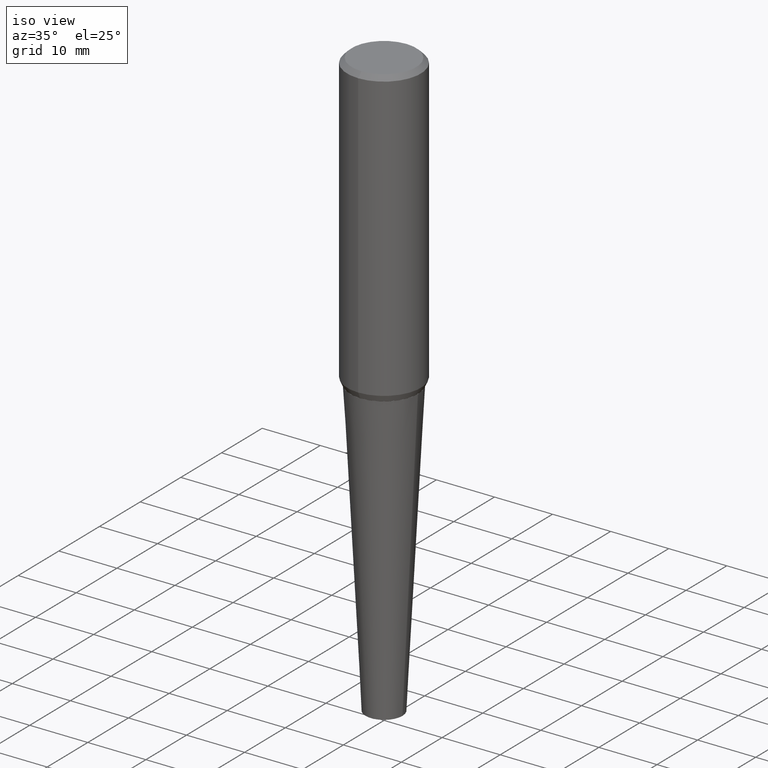
[diagram: clean part render]
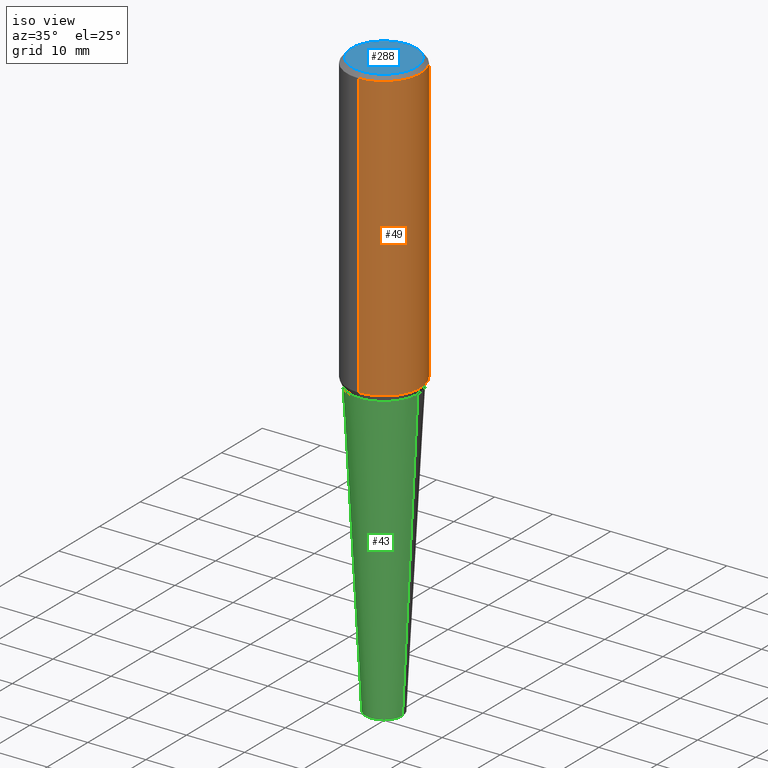
[diagram: same view with three faces highlighted in distinct colors, each labeled with its STEP entity id]
A machine part, iso view with three faces highlighted in distinct colors.
Their STEP definitions:

[orange] entity #49 — the highlighted cylindrical surface (partial cylindrical patch) has radius 6.35 mm, axis along (-0, 0, 1).
#13 = LINE ( 'NONE', #200, #180 ) ;
#20 = ORIENTED_EDGE ( 'NONE', *, *, #291, .F. ) ;
#21 = CARTESIAN_POINT ( 'NONE',  ( 1.776356839400248295E-15, 0.2499999999999997224, -7.828487236126975993E-16 ) ) ;
#26 = DIRECTION ( 'NONE',  ( -2.643499361395871506E-29, 3.207890312582139837E-15, 1.000000000000000000 ) ) ;
#49 = ADVANCED_FACE ( 'NONE', ( #247 ), #236, .T. ) ;
#50 = LINE ( 'NONE', #21, #170 ) ;
#59 = CARTESIAN_POINT ( 'NONE',  ( -1.715124499442888610E-15, -0.2500000000000010547, -0.03124999999999932693 ) ) ;
#77 = DIRECTION ( 'NONE',  ( -2.643499361395871506E-29, 3.207890312582139837E-15, 1.000000000000000000 ) ) ;
#103 = AXIS2_PLACEMENT_3D ( 'NONE', #350, #123, #192 ) ;
#123 = DIRECTION ( 'NONE',  ( -2.643499361395871506E-29, 3.207890312582139837E-15, 1.000000000000000000 ) ) ;
#124 = ORIENTED_EDGE ( 'NONE', *, *, #224, .T. ) ;
#133 = AXIS2_PLACEMENT_3D ( 'NONE', #295, #77, #296 ) ;
#149 = CARTESIAN_POINT ( 'NONE',  ( -1.745740669421517768E-15, -0.2500000000000067168, -1.956714325658313269 ) ) ;
#151 = EDGE_CURVE ( 'NONE', #403, #384, #261, .T. ) ;
#156 = CARTESIAN_POINT ( 'NONE',  ( 1.745740669421567269E-15, 0.2499999999999998890, -0.03125000000000092981 ) ) ;
#170 = VECTOR ( 'NONE', #26, 39.37007874015748143 ) ;
#178 = CARTESIAN_POINT ( 'NONE',  ( -3.397982428467408395E-30, -4.866104238714468673E-16, 1.912385453283800096E-17 ) ) ;
#180 = VECTOR ( 'NONE', #263, 39.37007874015748143 ) ;
#192 = DIRECTION ( 'NONE',  ( -6.982962677686265922E-15, -1.000000000000000000, 3.278217592397117045E-15 ) ) ;
#196 = AXIS2_PLACEMENT_3D ( 'NONE', #178, #366, #406 ) ;
#200 = CARTESIAN_POINT ( 'NONE',  ( -1.745740669421571411E-15, -0.2500000000000006661, 8.210964326783736998E-16 ) ) ;
#208 = ORIENTED_EDGE ( 'NONE', *, *, #151, .F. ) ;
#217 = CIRCLE ( 'NONE', #103, 0.2499999999999999167 ) ;
#224 = EDGE_CURVE ( 'NONE', #400, #334, #217, .T. ) ;
#236 = CYLINDRICAL_SURFACE ( 'NONE', #196, 0.2500000000000002220 ) ;
#247 = FACE_OUTER_BOUND ( 'NONE', #314, .T. ) ;
#261 = CIRCLE ( 'NONE', #133, 0.2500000000000004996 ) ;
#263 = DIRECTION ( 'NONE',  ( -2.643499361395871506E-29, 3.207890312582139837E-15, 1.000000000000000000 ) ) ;
#291 = EDGE_CURVE ( 'NONE', #400, #403, #13, .T. ) ;
#295 = CARTESIAN_POINT ( 'NONE',  ( -2.571888878031194345E-30, -5.868569961396391316E-16, -0.03125000000000012490 ) ) ;
#296 = DIRECTION ( 'NONE',  ( -6.982962677686265133E-15, -1.000000000000000000, 3.209921392555503119E-15 ) ) ;
#314 = EDGE_LOOP ( 'NONE', ( #124, #412, #208, #20 ) ) ;
#334 = VERTEX_POINT ( 'NONE', #397 ) ;
#350 = CARTESIAN_POINT ( 'NONE',  ( 4.832774827465166052E-29, -6.763535353641446132E-15, -1.956714325658313935 ) ) ;
#366 = DIRECTION ( 'NONE',  ( -2.643499361395871506E-29, 3.207890312582139837E-15, 1.000000000000000000 ) ) ;
#384 = VERTEX_POINT ( 'NONE', #156 ) ;
#397 = CARTESIAN_POINT ( 'NONE',  ( 1.776356839400273342E-15, 0.2499999999999931721, -1.956714325658314824 ) ) ;
#400 = VERTEX_POINT ( 'NONE', #149 ) ;
#403 = VERTEX_POINT ( 'NONE', #59 ) ;
#406 = DIRECTION ( 'NONE',  ( -6.982962677686265133E-15, -1.000000000000000000, 3.207890312582139837E-15 ) ) ;
#410 = EDGE_CURVE ( 'NONE', #334, #384, #50, .T. ) ;
#412 = ORIENTED_EDGE ( 'NONE', *, *, #410, .T. ) ;

[blue] entity #288 — the highlighted planar face has unit normal (0, -0, -1).
#12 = FACE_OUTER_BOUND ( 'NONE', #407, .T. ) ;
#30 = DIRECTION ( 'NONE',  ( -2.643499361395871506E-29, 3.207890312582139837E-15, 1.000000000000000000 ) ) ;
#32 = DIRECTION ( 'NONE',  ( -6.982962677686265922E-15, -1.000000000000000000, 3.207890312582139837E-15 ) ) ;
#74 = DIRECTION ( 'NONE',  ( -2.643499361395871506E-29, 3.207890312582139837E-15, 1.000000000000000000 ) ) ;
#132 = ORIENTED_EDGE ( 'NONE', *, *, #171, .T. ) ;
#139 = VERTEX_POINT ( 'NONE', #163 ) ;
#155 = DIRECTION ( 'NONE',  ( -6.982962677686265922E-15, -1.000000000000000000, 3.207890312582139837E-15 ) ) ;
#158 = CARTESIAN_POINT ( 'NONE',  ( -3.397982428467409796E-30, -4.866104238714466701E-16, 7.455686268861970718E-17 ) ) ;
#159 = CARTESIAN_POINT ( 'NONE',  ( 1.636631877582718366E-15, 0.2187499999999998890, -6.271691431887245285E-16 ) ) ;
#163 = CARTESIAN_POINT ( 'NONE',  ( -1.607929218227708429E-15, -0.2187500000000008327, 7.762828685659639182E-16 ) ) ;
#171 = EDGE_CURVE ( 'NONE', #379, #139, #278, .T. ) ;
#172 = DIRECTION ( 'NONE',  ( 6.982962677686265922E-15, 1.000000000000000000, -3.207890312582139837E-15 ) ) ;
#175 = CARTESIAN_POINT ( 'NONE',  ( 1.527523085743869857E-15, 0.2187499999999998890, -6.548856472666153755E-16 ) ) ;
#227 = CIRCLE ( 'NONE', #413, 0.2187500000000003608 ) ;
#272 = ORIENTED_EDGE ( 'NONE', *, *, #321, .T. ) ;
#278 = CIRCLE ( 'NONE', #316, 0.2187500000000003608 ) ;
#288 = ADVANCED_FACE ( 'NONE', ( #12 ), #299, .F. ) ;
#299 = PLANE ( 'NONE',  #373 ) ;
#316 = AXIS2_PLACEMENT_3D ( 'NONE', #158, #30, #155 ) ;
#321 = EDGE_CURVE ( 'NONE', #139, #379, #227, .T. ) ;
#333 = DIRECTION ( 'NONE',  ( 2.643499361395871506E-29, -3.207890312582139837E-15, -1.000000000000000000 ) ) ;
#355 = CARTESIAN_POINT ( 'NONE',  ( -3.397982428467409796E-30, -4.866104238714466701E-16, 7.455686268861970718E-17 ) ) ;
#373 = AXIS2_PLACEMENT_3D ( 'NONE', #175, #333, #172 ) ;
#379 = VERTEX_POINT ( 'NONE', #159 ) ;
#407 = EDGE_LOOP ( 'NONE', ( #132, #272 ) ) ;
#413 = AXIS2_PLACEMENT_3D ( 'NONE', #355, #74, #32 ) ;

[green] entity #43 — the highlighted conical surface has half-angle 3 deg.
#27 = EDGE_CURVE ( 'NONE', #405, #394, #270, .T. ) ;
#41 = LINE ( 'NONE', #341, #115 ) ;
#43 = ADVANCED_FACE ( 'NONE', ( #212 ), #69, .T. ) ;
#45 = CARTESIAN_POINT ( 'NONE',  ( 4.890937612370273194E-29, -6.982962677686291165E-15, -2.000000000000000000 ) ) ;
#48 = DIRECTION ( 'NONE',  ( 1.000000000000000000, -6.982962677686267499E-15, 0.000000000000000000 ) ) ;
#53 = DIRECTION ( 'NONE',  ( 0.05233595624293686799, 3.121236355867758903E-15, 0.9986295347545742773 ) ) ;
#69 = CONICAL_SURFACE ( 'NONE', #302, 0.1250000000000000555, 0.05235987755982290243 ) ;
#97 = DIRECTION ( 'NONE',  ( -2.445468806185136597E-29, 3.491481338843145583E-15, 1.000000000000000000 ) ) ;
#107 = AXIS2_PLACEMENT_3D ( 'NONE', #387, #97, #222 ) ;
#110 = ORIENTED_EDGE ( 'NONE', *, *, #27, .F. ) ;
#111 = ORIENTED_EDGE ( 'NONE', *, *, #357, .F. ) ;
#115 = VECTOR ( 'NONE', #53, 39.37007874015748143 ) ;
#120 = CARTESIAN_POINT ( 'NONE',  ( -0.2298155585660685007, -5.350024920648591981E-15, -2.000000000000000000 ) ) ;
#140 = CARTESIAN_POINT ( 'NONE',  ( 9.781875224740546387E-29, -1.396592535537258233E-14, -4.000000000000000000 ) ) ;
#179 = ORIENTED_EDGE ( 'NONE', *, *, #363, .T. ) ;
#182 = ORIENTED_EDGE ( 'NONE', *, *, #218, .T. ) ;
#190 = CARTESIAN_POINT ( 'NONE',  ( 0.1250000000000000555, -1.483879569008336725E-14, -4.000000000000000000 ) ) ;
#194 = CARTESIAN_POINT ( 'NONE',  ( -0.1250000000000000555, -1.307774693567245552E-14, -4.000000000000000000 ) ) ;
#209 = EDGE_LOOP ( 'NONE', ( #111, #182, #179, #110 ) ) ;
#212 = FACE_OUTER_BOUND ( 'NONE', #209, .T. ) ;
#218 = EDGE_CURVE ( 'NONE', #342, #242, #241, .T. ) ;
#222 = DIRECTION ( 'NONE',  ( 1.000000000000000000, -6.982962677686275388E-15, 0.000000000000000000 ) ) ;
#241 = CIRCLE ( 'NONE', #107, 0.1250000000000000555 ) ;
#242 = VERTEX_POINT ( 'NONE', #190 ) ;
#244 = DIRECTION ( 'NONE',  ( -2.445468806185136597E-29, 3.491481338843145583E-15, 1.000000000000000000 ) ) ;
#255 = CARTESIAN_POINT ( 'NONE',  ( 0.2298155585660685007, -8.587756145904770253E-15, -2.000000000000000000 ) ) ;
#264 = CARTESIAN_POINT ( 'NONE',  ( -0.1250000000000000555, -9.213885928160524934E-15, -4.000000000000000000 ) ) ;
#266 = DIRECTION ( 'NONE',  ( -0.05233595624293686799, 3.858565720287981448E-15, 0.9986295347545742773 ) ) ;
#270 = CIRCLE ( 'NONE', #344, 0.2298155585660685007 ) ;
#302 = AXIS2_PLACEMENT_3D ( 'NONE', #140, #244, #377 ) ;
#318 = VECTOR ( 'NONE', #266, 39.37007874015748143 ) ;
#338 = DIRECTION ( 'NONE',  ( -2.445468806185136597E-29, 3.491481338843145583E-15, 1.000000000000000000 ) ) ;
#341 = CARTESIAN_POINT ( 'NONE',  ( 0.1250000000000000555, -1.483879569008336725E-14, -4.000000000000000000 ) ) ;
#342 = VERTEX_POINT ( 'NONE', #264 ) ;
#344 = AXIS2_PLACEMENT_3D ( 'NONE', #45, #338, #48 ) ;
#357 = EDGE_CURVE ( 'NONE', #342, #405, #388, .T. ) ;
#363 = EDGE_CURVE ( 'NONE', #242, #394, #41, .T. ) ;
#377 = DIRECTION ( 'NONE',  ( 1.000000000000000000, -6.982962677686275388E-15, 0.000000000000000000 ) ) ;
#387 = CARTESIAN_POINT ( 'NONE',  ( 9.781875224740546387E-29, -1.396592535537258233E-14, -4.000000000000000000 ) ) ;
#388 = LINE ( 'NONE', #194, #318 ) ;
#394 = VERTEX_POINT ( 'NONE', #255 ) ;
#405 = VERTEX_POINT ( 'NONE', #120 ) ;